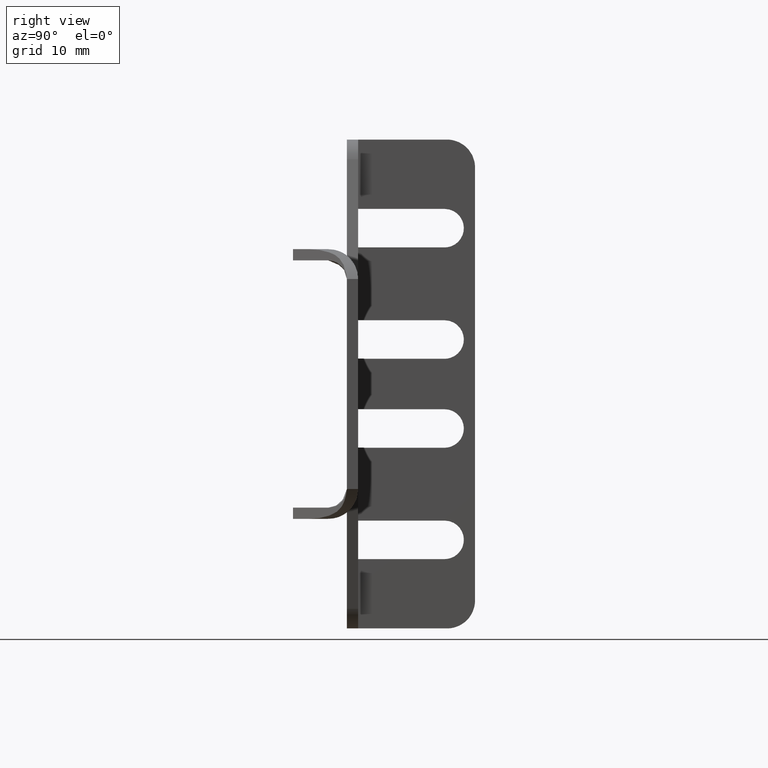
[diagram: clean part render]
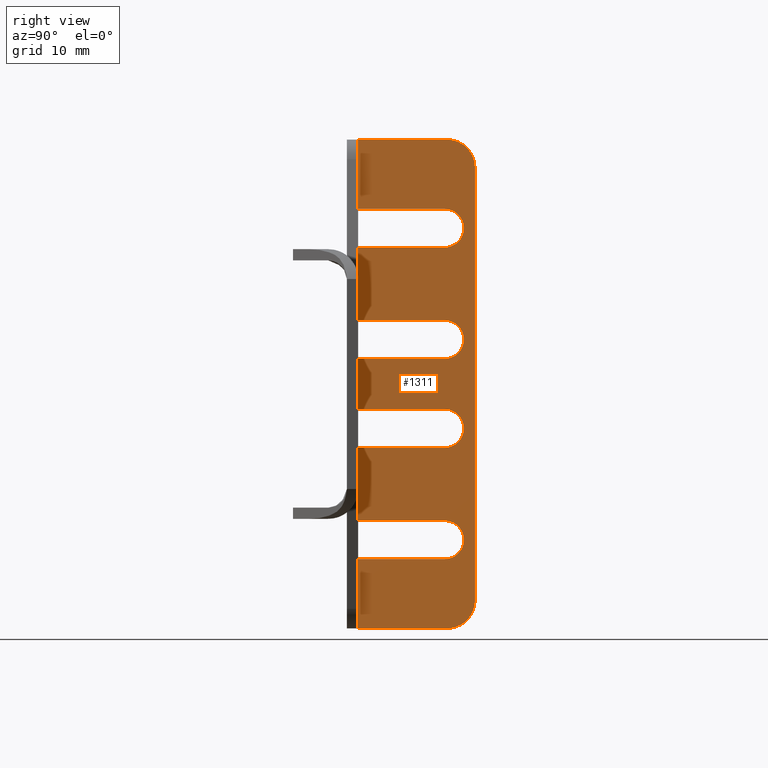
[diagram: same view with one face highlighted and labeled with its STEP entity id]
A machine part, right view. The second image highlights one B-rep face of the part: STEP entity #1311.
In plain terms, the highlighted face is a freeform B-spline surface patch.
Its self-contained STEP definition (entity closure, byte-faithful):
#320=CARTESIAN_POINT('',(1.600000000000000,-4.350000000000000,-19.500000000000000));
#321=VERTEX_POINT('',#320);
#327=CARTESIAN_POINT('',(1.600000000000000,-16.699999999999999,-19.500000000000000));
#328=VERTEX_POINT('',#327);
#329=CARTESIAN_POINT('',(1.600000000000000,-16.699999999999999,-19.500000000000000));
#330=CARTESIAN_POINT('',(1.600000000000000,-4.350000000000000,-19.500000000000000));
#331=QUASI_UNIFORM_CURVE('',1,(#329,#330),.UNSPECIFIED.,.F.,.U.);
#332=EDGE_CURVE('',#328,#321,#331,.T.);
#366=CARTESIAN_POINT('',(1.600000000000000,-16.699999999999999,-25.0));
#367=VERTEX_POINT('',#366);
#373=CARTESIAN_POINT('',(1.600000000000045,-4.350000000000000,-25.0));
#374=VERTEX_POINT('',#373);
#375=CARTESIAN_POINT('',(1.600000000000045,-4.350000000000000,-25.0));
#376=CARTESIAN_POINT('',(1.600000000000000,-16.699999999999999,-25.0));
#377=QUASI_UNIFORM_CURVE('',1,(#375,#376),.UNSPECIFIED.,.F.,.U.);
#378=EDGE_CURVE('',#374,#367,#377,.T.);
#429=CARTESIAN_POINT('',(1.600000000000045,-4.350000000000000,-19.500000000000000));
#430=CARTESIAN_POINT('',(1.600000000000045,-1.600000000000000,-19.500000000000004));
#431=CARTESIAN_POINT('',(1.600000000000045,-1.600000000000000,-22.250000000000000));
#432=CARTESIAN_POINT('',(1.600000000000045,-1.600000000000000,-25.0));
#433=CARTESIAN_POINT('',(1.600000000000045,-4.350000000000000,-25.0));
#441=(BOUNDED_CURVE()B_SPLINE_CURVE(2,(#429,#430,#431,#432,#433),.UNSPECIFIED.,.F.,.U.)B_SPLINE_CURVE_WITH_KNOTS((3,2,3),(0.0,0.500000000000000,1.0),.UNSPECIFIED.)CURVE()GEOMETRIC_REPRESENTATION_ITEM()RATIONAL_B_SPLINE_CURVE((1.0,0.707106781186548,1.0,0.707106781186548,1.0))REPRESENTATION_ITEM(''));
#442=EDGE_CURVE('',#321,#374,#441,.T.);
#546=CARTESIAN_POINT('',(1.600000000000000,-4.350000000000000,-3.599999999999935));
#547=VERTEX_POINT('',#546);
#553=CARTESIAN_POINT('',(1.600000000000000,-16.699999999999999,-3.600000000000000));
#554=VERTEX_POINT('',#553);
#555=CARTESIAN_POINT('',(1.600000000000000,-16.699999999999999,-3.600000000000000));
#556=CARTESIAN_POINT('',(1.600000000000000,-4.350000000000000,-3.599999999999935));
#557=QUASI_UNIFORM_CURVE('',1,(#555,#556),.UNSPECIFIED.,.F.,.U.);
#558=EDGE_CURVE('',#554,#547,#557,.T.);
#592=CARTESIAN_POINT('',(1.600000000000000,-16.699999999999999,-9.100000000000000));
#593=VERTEX_POINT('',#592);
#599=CARTESIAN_POINT('',(1.600000000000045,-4.350000000000000,-9.100000000000000));
#600=VERTEX_POINT('',#599);
#601=CARTESIAN_POINT('',(1.600000000000045,-4.350000000000000,-9.100000000000000));
#602=CARTESIAN_POINT('',(1.600000000000000,-16.699999999999999,-9.100000000000000));
#603=QUASI_UNIFORM_CURVE('',1,(#601,#602),.UNSPECIFIED.,.F.,.U.);
#604=EDGE_CURVE('',#600,#593,#603,.T.);
#655=CARTESIAN_POINT('',(1.600000000000000,-4.350000000000000,-3.599999999999935));
#656=CARTESIAN_POINT('',(1.600000000000045,-1.600000000000000,-3.600000000000000));
#657=CARTESIAN_POINT('',(1.600000000000045,-1.600000000000000,-6.350000000000000));
#658=CARTESIAN_POINT('',(1.600000000000045,-1.600000000000000,-9.100000000000000));
#659=CARTESIAN_POINT('',(1.600000000000045,-4.350000000000000,-9.100000000000000));
#667=(BOUNDED_CURVE()B_SPLINE_CURVE(2,(#655,#656,#657,#658,#659),.UNSPECIFIED.,.F.,.U.)B_SPLINE_CURVE_WITH_KNOTS((3,2,3),(0.0,0.500000000000000,1.0),.UNSPECIFIED.)CURVE()GEOMETRIC_REPRESENTATION_ITEM()RATIONAL_B_SPLINE_CURVE((1.0,0.707106781186548,1.0,0.707106781186548,1.0))REPRESENTATION_ITEM(''));
#668=EDGE_CURVE('',#547,#600,#667,.T.);
#772=CARTESIAN_POINT('',(1.600000000000000,-4.350000000000000,9.100000000000000));
#773=VERTEX_POINT('',#772);
#779=CARTESIAN_POINT('',(1.600000000000000,-16.699999999999999,9.100000000000000));
#780=VERTEX_POINT('',#779);
#781=CARTESIAN_POINT('',(1.600000000000000,-16.699999999999999,9.100000000000000));
#782=CARTESIAN_POINT('',(1.600000000000000,-4.350000000000000,9.100000000000000));
#783=QUASI_UNIFORM_CURVE('',1,(#781,#782),.UNSPECIFIED.,.F.,.U.);
#784=EDGE_CURVE('',#780,#773,#783,.T.);
#818=CARTESIAN_POINT('',(1.600000000000000,-16.699999999999999,3.600000000000000));
#819=VERTEX_POINT('',#818);
#825=CARTESIAN_POINT('',(1.600000000000045,-4.350000000000000,3.600000000000000));
#826=VERTEX_POINT('',#825);
#827=CARTESIAN_POINT('',(1.600000000000045,-4.350000000000000,3.600000000000000));
#828=CARTESIAN_POINT('',(1.600000000000000,-16.699999999999999,3.600000000000000));
#829=QUASI_UNIFORM_CURVE('',1,(#827,#828),.UNSPECIFIED.,.F.,.U.);
#830=EDGE_CURVE('',#826,#819,#829,.T.);
#881=CARTESIAN_POINT('',(1.600000000000000,-4.350000000000000,9.100000000000000));
#882=CARTESIAN_POINT('',(1.600000000000045,-1.600000000000000,9.100000000000000));
#883=CARTESIAN_POINT('',(1.600000000000045,-1.600000000000000,6.350000000000000));
#884=CARTESIAN_POINT('',(1.600000000000045,-1.600000000000000,3.600000000000000));
#885=CARTESIAN_POINT('',(1.600000000000045,-4.350000000000000,3.600000000000000));
#893=(BOUNDED_CURVE()B_SPLINE_CURVE(2,(#881,#882,#883,#884,#885),.UNSPECIFIED.,.F.,.U.)B_SPLINE_CURVE_WITH_KNOTS((3,2,3),(0.0,0.500000000000000,1.0),.UNSPECIFIED.)CURVE()GEOMETRIC_REPRESENTATION_ITEM()RATIONAL_B_SPLINE_CURVE((1.0,0.707106781186548,1.0,0.707106781186548,1.0))REPRESENTATION_ITEM(''));
#894=EDGE_CURVE('',#773,#826,#893,.T.);
#998=CARTESIAN_POINT('',(1.600000000000000,-4.350000000000000,25.0));
#999=VERTEX_POINT('',#998);
#1005=CARTESIAN_POINT('',(1.600000000000000,-16.699999999999999,25.0));
#1006=VERTEX_POINT('',#1005);
#1007=CARTESIAN_POINT('',(1.600000000000000,-16.699999999999999,25.0));
#1008=CARTESIAN_POINT('',(1.600000000000000,-4.350000000000000,25.0));
#1009=QUASI_UNIFORM_CURVE('',1,(#1007,#1008),.UNSPECIFIED.,.F.,.U.);
#1010=EDGE_CURVE('',#1006,#999,#1009,.T.);
#1042=CARTESIAN_POINT('',(1.600000000000000,-16.699999999999999,19.500000000000000));
#1043=VERTEX_POINT('',#1042);
#1049=CARTESIAN_POINT('',(1.600000000000045,-4.350000000000000,19.500000000000000));
#1050=VERTEX_POINT('',#1049);
#1051=CARTESIAN_POINT('',(1.600000000000045,-4.350000000000000,19.500000000000000));
#1052=CARTESIAN_POINT('',(1.600000000000000,-16.699999999999999,19.500000000000000));
#1053=QUASI_UNIFORM_CURVE('',1,(#1051,#1052),.UNSPECIFIED.,.F.,.U.);
#1054=EDGE_CURVE('',#1050,#1043,#1053,.T.);
#1105=CARTESIAN_POINT('',(1.600000000000045,-4.350000000000000,25.0));
#1106=CARTESIAN_POINT('',(1.600000000000045,-1.600000000000000,25.0));
#1107=CARTESIAN_POINT('',(1.600000000000045,-1.600000000000000,22.250000000000000));
#1108=CARTESIAN_POINT('',(1.600000000000045,-1.600000000000000,19.500000000000004));
#1109=CARTESIAN_POINT('',(1.600000000000045,-4.350000000000000,19.500000000000000));
#1117=(BOUNDED_CURVE()B_SPLINE_CURVE(2,(#1105,#1106,#1107,#1108,#1109),.UNSPECIFIED.,.F.,.U.)B_SPLINE_CURVE_WITH_KNOTS((3,2,3),(0.0,0.500000000000000,1.0),.UNSPECIFIED.)CURVE()GEOMETRIC_REPRESENTATION_ITEM()RATIONAL_B_SPLINE_CURVE((1.0,0.707106781186548,1.0,0.707106781186548,1.0))REPRESENTATION_ITEM(''));
#1118=EDGE_CURVE('',#999,#1050,#1117,.T.);
#1155=CARTESIAN_POINT('',(1.600000000000000,-4.0,34.899999999999999));
#1156=VERTEX_POINT('',#1155);
#1162=CARTESIAN_POINT('',(1.600000000000000,0.0,30.899999999999999));
#1163=VERTEX_POINT('',#1162);
#1164=CARTESIAN_POINT('',(1.600000000000000,0.0,30.899999999999999));
#1165=CARTESIAN_POINT('',(1.600000000000000,0.0,34.899999999999999));
#1166=CARTESIAN_POINT('',(1.600000000000000,-4.0,34.899999999999999));
#1174=(BOUNDED_CURVE()B_SPLINE_CURVE(2,(#1164,#1165,#1166),.UNSPECIFIED.,.F.,.U.)CURVE()GEOMETRIC_REPRESENTATION_ITEM()QUASI_UNIFORM_CURVE()RATIONAL_B_SPLINE_CURVE((1.0,0.707106781186548,1.0))REPRESENTATION_ITEM(''));
#1175=EDGE_CURVE('',#1163,#1156,#1174,.T.);
#1199=CARTESIAN_POINT('',(1.600000000000000,-4.0,-34.899999999999999));
#1200=VERTEX_POINT('',#1199);
#1201=CARTESIAN_POINT('',(1.600000000000000,0.0,-30.899999999999999));
#1202=VERTEX_POINT('',#1201);
#1203=CARTESIAN_POINT('',(1.600000000000000,-4.0,-34.899999999999999));
#1204=CARTESIAN_POINT('',(1.600000000000000,0.0,-34.899999999999999));
#1205=CARTESIAN_POINT('',(1.600000000000000,0.0,-30.899999999999999));
#1213=(BOUNDED_CURVE()B_SPLINE_CURVE(2,(#1203,#1204,#1205),.UNSPECIFIED.,.F.,.U.)CURVE()GEOMETRIC_REPRESENTATION_ITEM()QUASI_UNIFORM_CURVE()RATIONAL_B_SPLINE_CURVE((1.0,0.707106781186548,1.0))REPRESENTATION_ITEM(''));
#1214=EDGE_CURVE('',#1200,#1202,#1213,.T.);
#1246=CARTESIAN_POINT('',(1.600000000000000,0.834164967632158,-38.386511830411443));
#1247=CARTESIAN_POINT('',(1.600000000000000,-17.534165415561059,-38.386511830411443));
#1248=CARTESIAN_POINT('',(1.600000000000000,0.834164967632158,38.386511830411443));
#1249=CARTESIAN_POINT('',(1.600000000000000,-17.534165415561059,38.386511830411443));
#1250=B_SPLINE_SURFACE_WITH_KNOTS('',1,1,((#1246,#1248),(#1247,#1249)),.UNSPECIFIED.,.F.,.F.,.U.,(2,2),(2,2),(0.0,18.368330383193221),(0.0,76.773023660822872),.UNSPECIFIED.);
#1251=ORIENTED_EDGE('',*,*,#442,.T.);
#1252=ORIENTED_EDGE('',*,*,#378,.T.);
#1253=CARTESIAN_POINT('',(1.600000000000000,-16.699999999999999,-34.899999999999999));
#1254=VERTEX_POINT('',#1253);
#1255=CARTESIAN_POINT('',(1.600000000000000,-16.699999999999999,-34.899999999999999));
#1256=CARTESIAN_POINT('',(1.600000000000000,-16.699999999999999,-25.0));
#1257=QUASI_UNIFORM_CURVE('',1,(#1255,#1256),.UNSPECIFIED.,.F.,.U.);
#1258=EDGE_CURVE('',#1254,#367,#1257,.T.);
#1259=ORIENTED_EDGE('',*,*,#1258,.F.);
#1260=CARTESIAN_POINT('',(1.600000000000000,-4.0,-34.899999999999999));
#1261=CARTESIAN_POINT('',(1.600000000000000,-16.699999999999999,-34.899999999999999));
#1262=QUASI_UNIFORM_CURVE('',1,(#1260,#1261),.UNSPECIFIED.,.F.,.U.);
#1263=EDGE_CURVE('',#1200,#1254,#1262,.T.);
#1264=ORIENTED_EDGE('',*,*,#1263,.F.);
#1265=ORIENTED_EDGE('',*,*,#1214,.T.);
#1266=CARTESIAN_POINT('',(1.600000000000000,0.0,30.899999999999999));
#1267=CARTESIAN_POINT('',(1.600000000000000,0.0,-30.899999999999999));
#1268=QUASI_UNIFORM_CURVE('',1,(#1266,#1267),.UNSPECIFIED.,.F.,.U.);
#1269=EDGE_CURVE('',#1163,#1202,#1268,.T.);
#1270=ORIENTED_EDGE('',*,*,#1269,.F.);
#1271=ORIENTED_EDGE('',*,*,#1175,.T.);
#1272=CARTESIAN_POINT('',(1.600000000000000,-16.699999999999999,34.899999999999999));
#1273=VERTEX_POINT('',#1272);
#1274=CARTESIAN_POINT('',(1.600000000000000,-4.0,34.899999999999999));
#1275=CARTESIAN_POINT('',(1.600000000000000,-16.699999999999999,34.899999999999999));
#1276=QUASI_UNIFORM_CURVE('',1,(#1274,#1275),.UNSPECIFIED.,.F.,.U.);
#1277=EDGE_CURVE('',#1156,#1273,#1276,.T.);
#1278=ORIENTED_EDGE('',*,*,#1277,.T.);
#1279=CARTESIAN_POINT('',(1.600000000000000,-16.699999999999999,25.0));
#1280=CARTESIAN_POINT('',(1.600000000000000,-16.699999999999999,34.899999999999999));
#1281=QUASI_UNIFORM_CURVE('',1,(#1279,#1280),.UNSPECIFIED.,.F.,.U.);
#1282=EDGE_CURVE('',#1006,#1273,#1281,.T.);
#1283=ORIENTED_EDGE('',*,*,#1282,.F.);
#1284=ORIENTED_EDGE('',*,*,#1010,.T.);
#1285=ORIENTED_EDGE('',*,*,#1118,.T.);
#1286=ORIENTED_EDGE('',*,*,#1054,.T.);
#1287=CARTESIAN_POINT('',(1.600000000000000,-16.699999999999999,9.100000000000000));
#1288=CARTESIAN_POINT('',(1.600000000000000,-16.699999999999999,19.500000000000000));
#1289=QUASI_UNIFORM_CURVE('',1,(#1287,#1288),.UNSPECIFIED.,.F.,.U.);
#1290=EDGE_CURVE('',#780,#1043,#1289,.T.);
#1291=ORIENTED_EDGE('',*,*,#1290,.F.);
#1292=ORIENTED_EDGE('',*,*,#784,.T.);
#1293=ORIENTED_EDGE('',*,*,#894,.T.);
#1294=ORIENTED_EDGE('',*,*,#830,.T.);
#1295=CARTESIAN_POINT('',(1.600000000000000,-16.699999999999999,-3.600000000000000));
#1296=CARTESIAN_POINT('',(1.600000000000000,-16.699999999999999,3.600000000000000));
#1297=QUASI_UNIFORM_CURVE('',1,(#1295,#1296),.UNSPECIFIED.,.F.,.U.);
#1298=EDGE_CURVE('',#554,#819,#1297,.T.);
#1299=ORIENTED_EDGE('',*,*,#1298,.F.);
#1300=ORIENTED_EDGE('',*,*,#558,.T.);
#1301=ORIENTED_EDGE('',*,*,#668,.T.);
#1302=ORIENTED_EDGE('',*,*,#604,.T.);
#1303=CARTESIAN_POINT('',(1.600000000000000,-16.699999999999999,-19.500000000000000));
#1304=CARTESIAN_POINT('',(1.600000000000000,-16.699999999999999,-9.100000000000000));
#1305=QUASI_UNIFORM_CURVE('',1,(#1303,#1304),.UNSPECIFIED.,.F.,.U.);
#1306=EDGE_CURVE('',#328,#593,#1305,.T.);
#1307=ORIENTED_EDGE('',*,*,#1306,.F.);
#1308=ORIENTED_EDGE('',*,*,#332,.T.);
#1309=EDGE_LOOP('',(#1251,#1252,#1259,#1264,#1265,#1270,#1271,#1278,#1283,#1284,#1285,#1286,#1291,#1292,#1293,#1294,#1299,#1300,#1301,#1302,#1307,#1308));
#1310=FACE_OUTER_BOUND('',#1309,.T.);
#1311=ADVANCED_FACE('',(#1310),#1250,.F.);